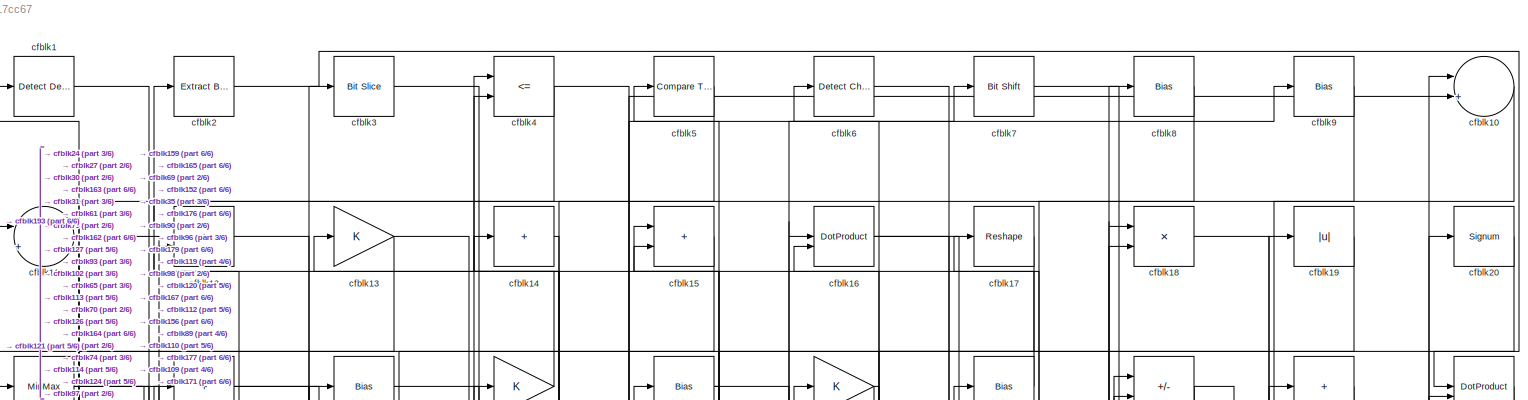
[diagram: root canvas - part 1/6, full width, top band]
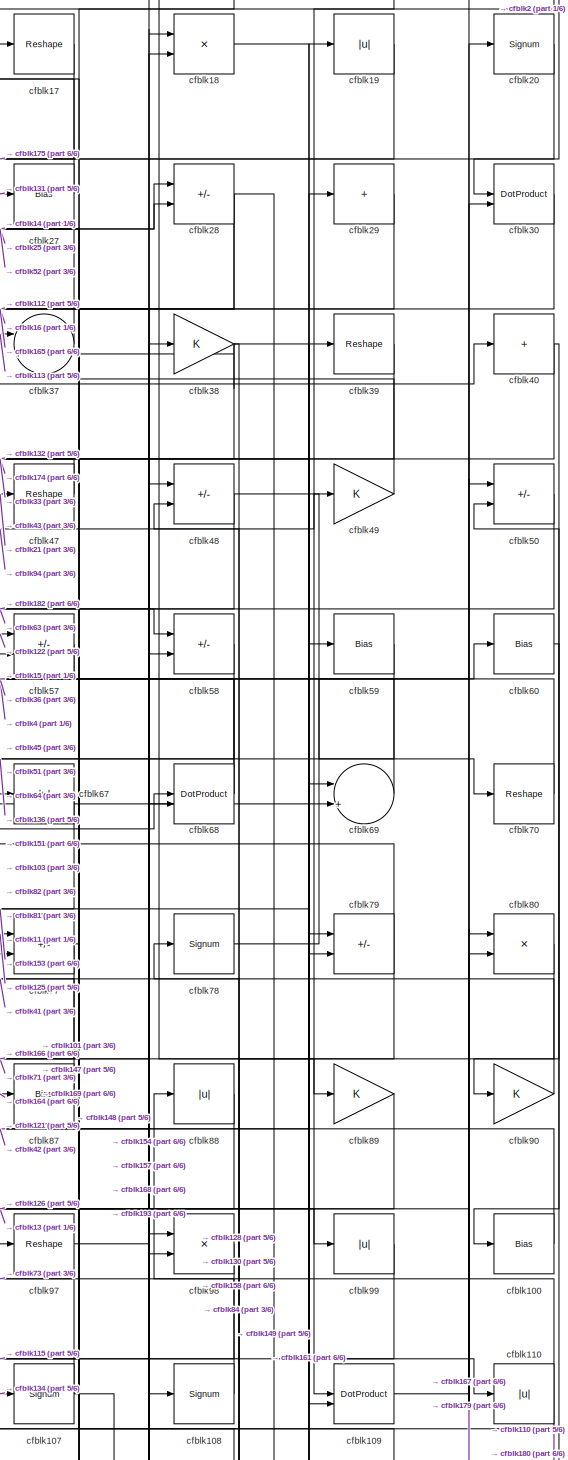
[diagram: root canvas - part 2/6, top right region]
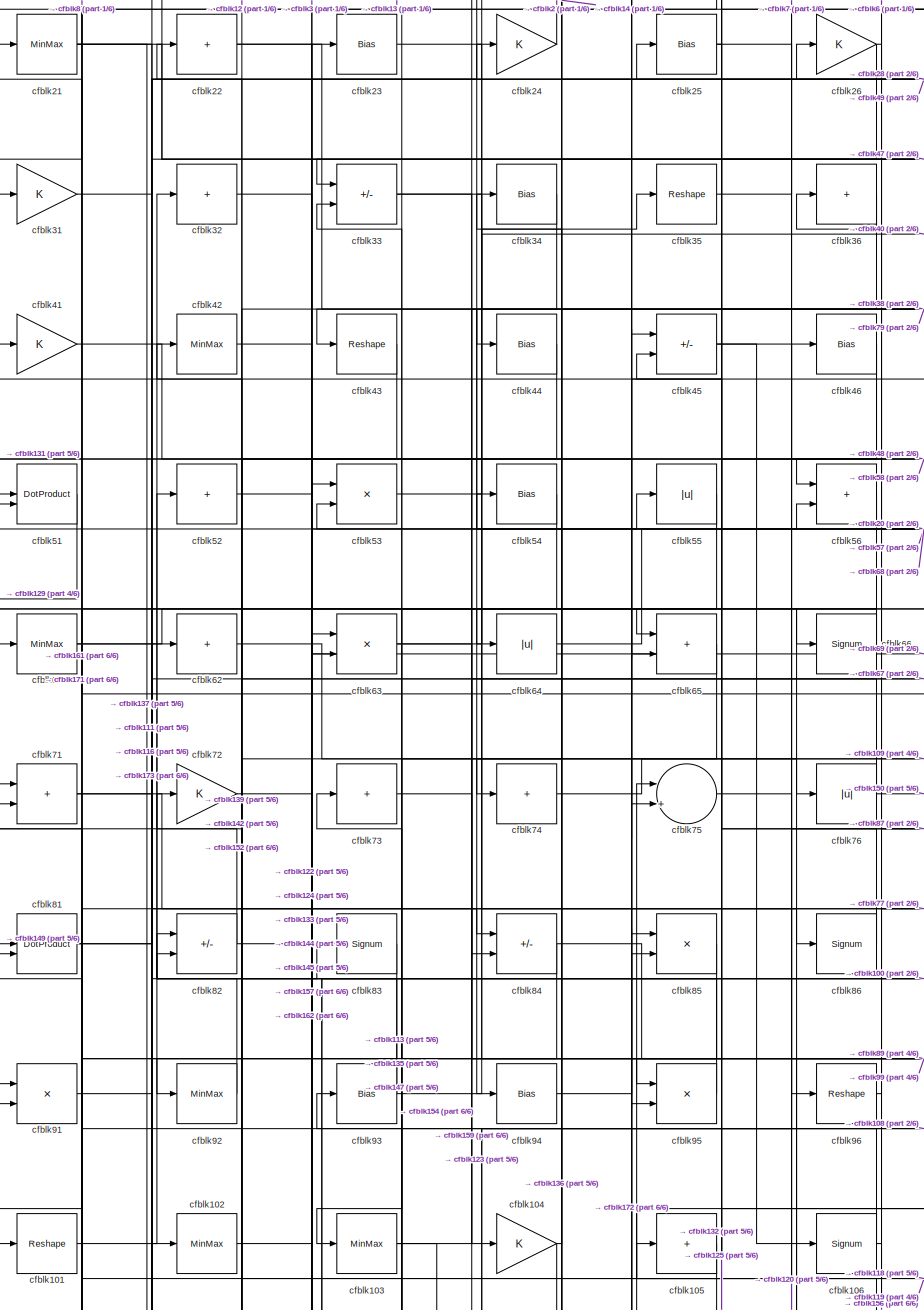
[diagram: root canvas - part 3/6, top left region]
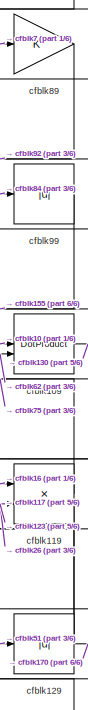
[diagram: root canvas - part 4/6, middle right region]
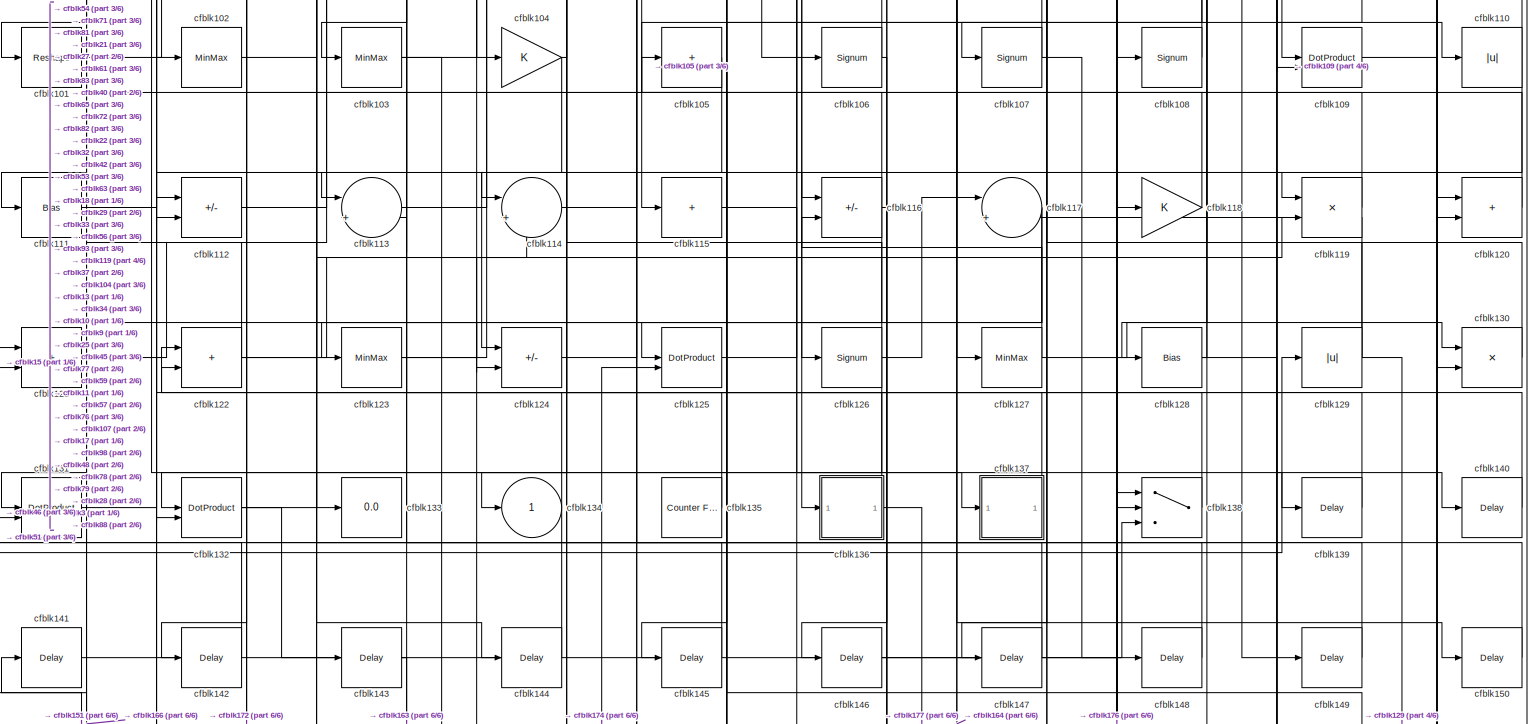
[diagram: root canvas - part 5/6, full width, middle band]
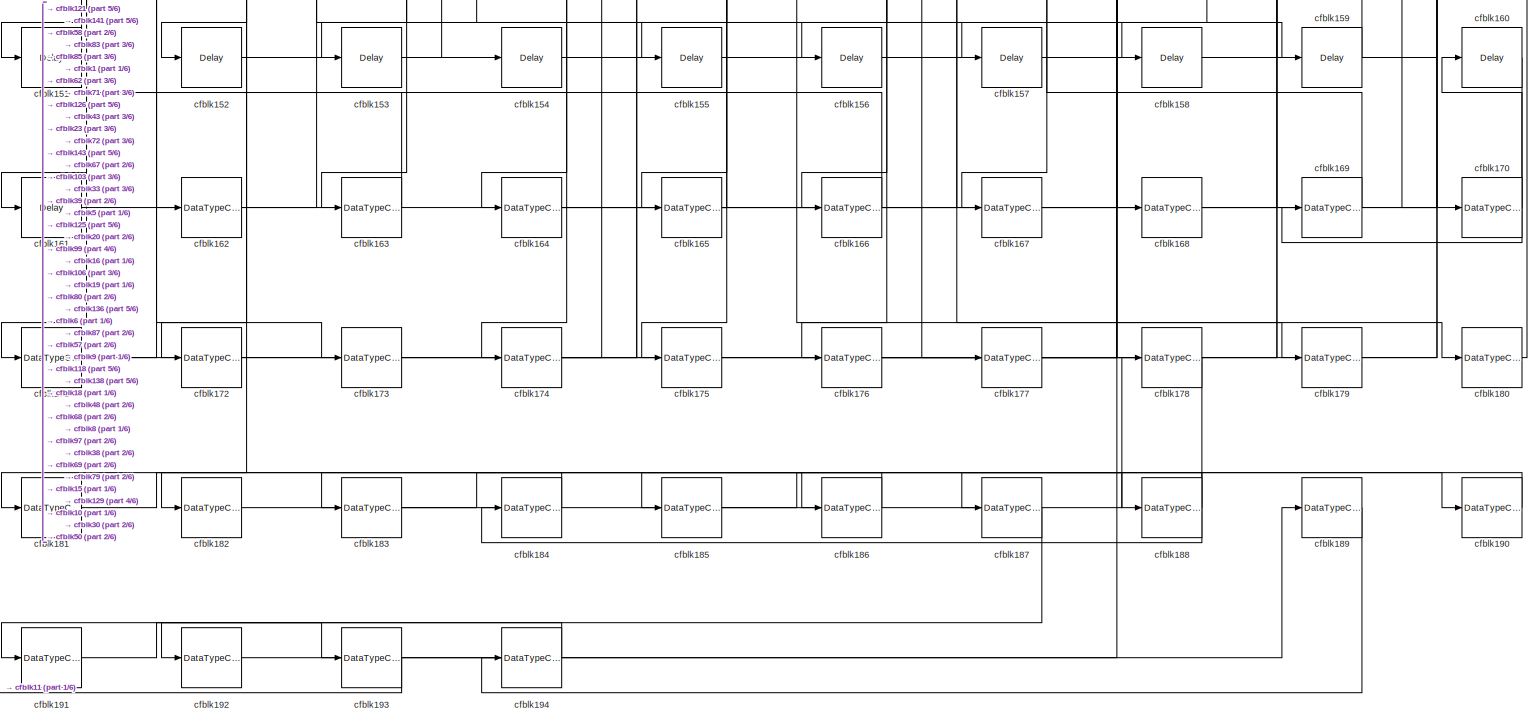
[diagram: root canvas - part 6/6, full width, bottom band]
MODEL slx_c3334517cc67
KIND model
CONFIG AbsTol = auto
CONFIG EnableMultiTasking = off
CONFIG FixedStep = auto
CONFIG MaxStep = auto
CONFIG MinStep = auto
CONFIG RelTol = 1e-3
CONFIG SampleTimeConstraint = Unconstrained
CONFIG SolverName = VariableStepAuto
CONFIG StartTime = 0.0
CONFIG StopTime = 10.0
BLOCK [Reference] cfblk1  REF=simulink/Logic and Bit
Operations/Detect
Decrease
  LibrarySourceBlock = hdlsllib/Logic and Bit\nOperations/Detect\nDecrease
  SourceBlock = simulink/Logic and Bit\nOperations/Detect\nDecrease
  SourceType = Detect Decrease
BLOCK [Sum] cfblk10
  Inputs = |++
BLOCK [Bias] cfblk100
  Bias = 0.0
  SaturateOnIntegerOverflow = off
BLOCK [Reshape] cfblk101
BLOCK [MinMax] cfblk102
BLOCK [MinMax] cfblk103
BLOCK [Gain] cfblk104
BLOCK [Sum] cfblk105
  IconShape = rectangular
  Inputs = +
BLOCK [Signum] cfblk106
BLOCK [Signum] cfblk107
BLOCK [Signum] cfblk108
BLOCK [DotProduct] cfblk109
  OutDataTypeStr = Inherit: Inherit via internal rule
BLOCK [Sum] cfblk11
  Inputs = |++
BLOCK [Abs] cfblk110
  SaturateOnIntegerOverflow = off
BLOCK [Bias] cfblk111
  Bias = 0.0
  SaturateOnIntegerOverflow = off
BLOCK [Sum] cfblk112
  IconShape = rectangular
  Inputs = +-
BLOCK [Sum] cfblk113
  Inputs = |++
BLOCK [Sum] cfblk114
  Inputs = |++
BLOCK [Sum] cfblk115
  IconShape = rectangular
  Inputs = +
BLOCK [Sum] cfblk116
  IconShape = rectangular
  Inputs = +-
BLOCK [Sum] cfblk117
  Inputs = |++
BLOCK [Gain] cfblk118
BLOCK [Product] cfblk119
  Inputs = */
  RndMeth = Zero
  SaturateOnIntegerOverflow = on
BLOCK [Sum] cfblk12
  IconShape = rectangular
BLOCK [Sum] cfblk120
  IconShape = rectangular
BLOCK [Sum] cfblk121
  IconShape = rectangular
BLOCK [Sum] cfblk122
  IconShape = rectangular
BLOCK [MinMax] cfblk123
BLOCK [Sum] cfblk124
  IconShape = rectangular
  Inputs = +-
BLOCK [DotProduct] cfblk125
  OutDataTypeStr = Inherit: Inherit via internal rule
BLOCK [Signum] cfblk126
BLOCK [MinMax] cfblk127
BLOCK [Bias] cfblk128
  Bias = 0.0
  SaturateOnIntegerOverflow = off
BLOCK [Abs] cfblk129
  SaturateOnIntegerOverflow = off
BLOCK [Gain] cfblk13
BLOCK [Product] cfblk130
  Inputs = */
  RndMeth = Zero
  SaturateOnIntegerOverflow = on
BLOCK [DotProduct] cfblk131
  OutDataTypeStr = Inherit: Inherit via internal rule
BLOCK [DotProduct] cfblk132
  OutDataTypeStr = Inherit: Inherit via internal rule
BLOCK [Display] cfblk133
  Decimation = 1
BLOCK [Outport] cfblk134
  VectorParamsAs1DForOutWhenUnconnected = off
BLOCK [Reference] cfblk135  REF=hdlsllib/Sources/Counter
Free-Running
  SourceBlock = hdlsllib/Sources/Counter\nFree-Running
  SourceType = Counter Free-Running
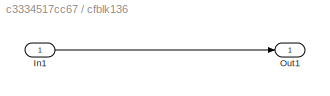
BLOCK [SubSystem] cfblk136
  LibrarySourceBlock = hdlsllib/Ports &\nSubsystems/Subsystem
BLOCK [Inport] cfblk136/In1
BLOCK [Outport] cfblk136/Out1
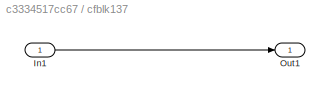
BLOCK [SubSystem] cfblk137
  LibrarySourceBlock = hdlsllib/Ports &\nSubsystems/Subsystem
BLOCK [Inport] cfblk137/In1
BLOCK [Outport] cfblk137/Out1
BLOCK [Switch] cfblk138
  InputSameDT = off
  SaturateOnIntegerOverflow = off
BLOCK [Delay] cfblk139
  InputPortMap = u0
  SampleTime = 1
BLOCK [Sum] cfblk14
  IconShape = rectangular
  Inputs = +
BLOCK [Delay] cfblk140
  InputPortMap = u0
  SampleTime = 1
BLOCK [Delay] cfblk141
  InputPortMap = u0
  SampleTime = 1
BLOCK [Delay] cfblk142
  InputPortMap = u0
  SampleTime = 1
BLOCK [Delay] cfblk143
  InputPortMap = u0
  SampleTime = 1
BLOCK [Delay] cfblk144
  InputPortMap = u0
  SampleTime = 1
BLOCK [Delay] cfblk145
  InputPortMap = u0
  SampleTime = 1
BLOCK [Delay] cfblk146
  InputPortMap = u0
  SampleTime = 1
BLOCK [Delay] cfblk147
  InputPortMap = u0
  SampleTime = 1
BLOCK [Delay] cfblk148
  InputPortMap = u0
  SampleTime = 1
BLOCK [Delay] cfblk149
  InputPortMap = u0
  SampleTime = 1
BLOCK [Sum] cfblk15
  IconShape = rectangular
BLOCK [Delay] cfblk150
  InputPortMap = u0
  SampleTime = 1
BLOCK [Delay] cfblk151
  InputPortMap = u0
  SampleTime = 1
BLOCK [Delay] cfblk152
  InputPortMap = u0
  SampleTime = 1
BLOCK [Delay] cfblk153
  InputPortMap = u0
  SampleTime = 1
BLOCK [Delay] cfblk154
  InputPortMap = u0
  SampleTime = 1
BLOCK [Delay] cfblk155
  InputPortMap = u0
  SampleTime = 1
BLOCK [Delay] cfblk156
  InputPortMap = u0
  SampleTime = 1
BLOCK [Delay] cfblk157
  InputPortMap = u0
  SampleTime = 1
BLOCK [Delay] cfblk158
  InputPortMap = u0
  SampleTime = 1
BLOCK [Delay] cfblk159
  InputPortMap = u0
  SampleTime = 1
BLOCK [DotProduct] cfblk16
  OutDataTypeStr = Inherit: Inherit via internal rule
BLOCK [Delay] cfblk160
  InputPortMap = u0
  SampleTime = 1
BLOCK [Delay] cfblk161
  InputPortMap = u0
  SampleTime = 1
BLOCK [DataTypeConversion] cfblk162
  OutDataTypeStr = uint8
  RndMeth = Floor
  SaturateOnIntegerOverflow = off
BLOCK [DataTypeConversion] cfblk163
  OutDataTypeStr = uint8
  RndMeth = Floor
  SaturateOnIntegerOverflow = off
BLOCK [DataTypeConversion] cfblk164
  RndMeth = Floor
  SaturateOnIntegerOverflow = off
BLOCK [DataTypeConversion] cfblk165
  OutDataTypeStr = uint8
  RndMeth = Floor
  SaturateOnIntegerOverflow = off
BLOCK [DataTypeConversion] cfblk166
  OutDataTypeStr = uint8
  RndMeth = Floor
  SaturateOnIntegerOverflow = off
BLOCK [DataTypeConversion] cfblk167
  OutDataTypeStr = uint8
  RndMeth = Floor
  SaturateOnIntegerOverflow = off
BLOCK [DataTypeConversion] cfblk168
  OutDataTypeStr = uint8
  RndMeth = Floor
  SaturateOnIntegerOverflow = off
BLOCK [DataTypeConversion] cfblk169
  OutDataTypeStr = uint8
  RndMeth = Floor
  SaturateOnIntegerOverflow = off
BLOCK [Reshape] cfblk17
BLOCK [DataTypeConversion] cfblk170
  OutDataTypeStr = uint8
  RndMeth = Floor
  SaturateOnIntegerOverflow = off
BLOCK [DataTypeConversion] cfblk171
  RndMeth = Floor
  SaturateOnIntegerOverflow = off
BLOCK [DataTypeConversion] cfblk172
  OutDataTypeStr = uint8
  RndMeth = Floor
  SaturateOnIntegerOverflow = off
BLOCK [DataTypeConversion] cfblk173
  OutDataTypeStr = uint8
  RndMeth = Floor
  SaturateOnIntegerOverflow = off
BLOCK [DataTypeConversion] cfblk174
  RndMeth = Floor
  SaturateOnIntegerOverflow = off
BLOCK [DataTypeConversion] cfblk175
  OutDataTypeStr = uint8
  RndMeth = Floor
  SaturateOnIntegerOverflow = off
BLOCK [DataTypeConversion] cfblk176
  RndMeth = Floor
  SaturateOnIntegerOverflow = off
BLOCK [DataTypeConversion] cfblk177
  OutDataTypeStr = uint8
  RndMeth = Floor
  SaturateOnIntegerOverflow = off
BLOCK [DataTypeConversion] cfblk178
  RndMeth = Floor
  SaturateOnIntegerOverflow = off
BLOCK [DataTypeConversion] cfblk179
  OutDataTypeStr = uint8
  RndMeth = Floor
  SaturateOnIntegerOverflow = off
BLOCK [Product] cfblk18
  Inputs = */
  RndMeth = Zero
  SaturateOnIntegerOverflow = on
BLOCK [DataTypeConversion] cfblk180
  OutDataTypeStr = uint8
  RndMeth = Floor
  SaturateOnIntegerOverflow = off
BLOCK [DataTypeConversion] cfblk181
  RndMeth = Floor
  SaturateOnIntegerOverflow = off
BLOCK [DataTypeConversion] cfblk182
  OutDataTypeStr = uint8
  RndMeth = Floor
  SaturateOnIntegerOverflow = off
BLOCK [DataTypeConversion] cfblk183
  RndMeth = Floor
  SaturateOnIntegerOverflow = off
BLOCK [DataTypeConversion] cfblk184
  OutDataTypeStr = uint8
  RndMeth = Floor
  SaturateOnIntegerOverflow = off
BLOCK [DataTypeConversion] cfblk185
  RndMeth = Floor
  SaturateOnIntegerOverflow = off
BLOCK [DataTypeConversion] cfblk186
  OutDataTypeStr = uint8
  RndMeth = Floor
  SaturateOnIntegerOverflow = off
BLOCK [DataTypeConversion] cfblk187
  RndMeth = Floor
  SaturateOnIntegerOverflow = off
BLOCK [DataTypeConversion] cfblk188
  OutDataTypeStr = uint8
  RndMeth = Floor
  SaturateOnIntegerOverflow = off
BLOCK [DataTypeConversion] cfblk189
  RndMeth = Floor
  SaturateOnIntegerOverflow = off
BLOCK [Abs] cfblk19
  SaturateOnIntegerOverflow = off
BLOCK [DataTypeConversion] cfblk190
  OutDataTypeStr = uint8
  RndMeth = Floor
  SaturateOnIntegerOverflow = off
BLOCK [DataTypeConversion] cfblk191
  RndMeth = Floor
  SaturateOnIntegerOverflow = off
BLOCK [DataTypeConversion] cfblk192
  OutDataTypeStr = uint8
  RndMeth = Floor
  SaturateOnIntegerOverflow = off
BLOCK [DataTypeConversion] cfblk193
  RndMeth = Floor
  SaturateOnIntegerOverflow = off
BLOCK [DataTypeConversion] cfblk194
  OutDataTypeStr = uint8
  RndMeth = Floor
  SaturateOnIntegerOverflow = off
BLOCK [Reference] cfblk2  REF=simulink/Logic and Bit
Operations/Extract Bits
  LibrarySourceBlock = hdlsllib/Logic and Bit\nOperations/Extract Bits
  SourceBlock = simulink/Logic and Bit\nOperations/Extract Bits
  SourceType = Extract Bits
BLOCK [Signum] cfblk20
BLOCK [MinMax] cfblk21
BLOCK [Sum] cfblk22
  IconShape = rectangular
  Inputs = +
BLOCK [Bias] cfblk23
  Bias = 0.0
  SaturateOnIntegerOverflow = off
BLOCK [Gain] cfblk24
BLOCK [Bias] cfblk25
  Bias = 0.0
  SaturateOnIntegerOverflow = off
BLOCK [Gain] cfblk26
BLOCK [Bias] cfblk27
  Bias = 0.0
  SaturateOnIntegerOverflow = off
BLOCK [Sum] cfblk28
  IconShape = rectangular
  Inputs = +-
BLOCK [Sum] cfblk29
  IconShape = rectangular
  Inputs = +
BLOCK [Reference] cfblk3  REF=hdlsllib/Logic and Bit
Operations/Bit Slice
  SourceBlock = hdlsllib/Logic and Bit\nOperations/Bit Slice
  SourceType = Bit Slice
BLOCK [DotProduct] cfblk30
  OutDataTypeStr = Inherit: Inherit via internal rule
BLOCK [Gain] cfblk31
BLOCK [Sum] cfblk32
  IconShape = rectangular
  Inputs = +
BLOCK [Sum] cfblk33
  IconShape = rectangular
  Inputs = +-
BLOCK [Bias] cfblk34
  Bias = 0.0
  SaturateOnIntegerOverflow = off
BLOCK [Reshape] cfblk35
BLOCK [Sum] cfblk36
  IconShape = rectangular
  Inputs = +
BLOCK [Sum] cfblk37
  Inputs = |++
BLOCK [Gain] cfblk38
BLOCK [Reshape] cfblk39
BLOCK [RelationalOperator] cfblk4
  InputSameDT = off
  Operator = <=
  OutDataTypeStr = boolean
BLOCK [Sum] cfblk40
  IconShape = rectangular
  Inputs = +
BLOCK [Gain] cfblk41
BLOCK [MinMax] cfblk42
BLOCK [Reshape] cfblk43
BLOCK [Bias] cfblk44
  Bias = 0.0
  SaturateOnIntegerOverflow = off
BLOCK [Sum] cfblk45
  IconShape = rectangular
  Inputs = +-
BLOCK [Bias] cfblk46
  Bias = 0.0
  SaturateOnIntegerOverflow = off
BLOCK [Reshape] cfblk47
BLOCK [Sum] cfblk48
  IconShape = rectangular
  Inputs = +-
BLOCK [Gain] cfblk49
BLOCK [Reference] cfblk5  REF=hdlsllib/Logic and Bit
Operations/Compare
To Constant
  SourceBlock = hdlsllib/Logic and Bit\nOperations/Compare\nTo Constant
  SourceType = Compare To Constant
BLOCK [Sum] cfblk50
  IconShape = rectangular
  Inputs = +-
BLOCK [DotProduct] cfblk51
  OutDataTypeStr = Inherit: Inherit via internal rule
BLOCK [Sum] cfblk52
  IconShape = rectangular
  Inputs = +
BLOCK [Product] cfblk53
  Inputs = */
  RndMeth = Zero
  SaturateOnIntegerOverflow = on
BLOCK [Bias] cfblk54
  Bias = 0.0
  SaturateOnIntegerOverflow = off
BLOCK [Abs] cfblk55
  SaturateOnIntegerOverflow = off
BLOCK [Sum] cfblk56
  IconShape = rectangular
BLOCK [Sum] cfblk57
  IconShape = rectangular
  Inputs = +-
BLOCK [Sum] cfblk58
  IconShape = rectangular
  Inputs = +-
BLOCK [Bias] cfblk59
  Bias = 0.0
  SaturateOnIntegerOverflow = off
BLOCK [Reference] cfblk6  REF=simulink/Logic and Bit
Operations/Detect
Change
  LibrarySourceBlock = hdlsllib/Logic and Bit\nOperations/Detect\nChange
  SourceBlock = simulink/Logic and Bit\nOperations/Detect\nChange
  SourceType = Detect Change
BLOCK [Bias] cfblk60
  Bias = 0.0
  SaturateOnIntegerOverflow = off
BLOCK [MinMax] cfblk61
BLOCK [Sum] cfblk62
  IconShape = rectangular
  Inputs = +
BLOCK [Product] cfblk63
  Inputs = */
  RndMeth = Zero
  SaturateOnIntegerOverflow = on
BLOCK [Abs] cfblk64
  SaturateOnIntegerOverflow = off
BLOCK [Sum] cfblk65
  IconShape = rectangular
BLOCK [Signum] cfblk66
BLOCK [Abs] cfblk67
  SaturateOnIntegerOverflow = off
BLOCK [DotProduct] cfblk68
  OutDataTypeStr = Inherit: Inherit via internal rule
BLOCK [Sum] cfblk69
  Inputs = |++
BLOCK [Reference] cfblk7  REF=hdlsllib/Logic and Bit
Operations/Bit Shift
  SourceBlock = hdlsllib/Logic and Bit\nOperations/Bit Shift
  SourceType = Bit Shift
BLOCK [Reshape] cfblk70
BLOCK [Sum] cfblk71
  IconShape = rectangular
BLOCK [Gain] cfblk72
BLOCK [Sum] cfblk73
  IconShape = rectangular
  Inputs = +
BLOCK [Sum] cfblk74
  IconShape = rectangular
  Inputs = +
BLOCK [Sum] cfblk75
  Inputs = |++
BLOCK [Abs] cfblk76
  SaturateOnIntegerOverflow = off
BLOCK [Sum] cfblk77
  IconShape = rectangular
  Inputs = +-
BLOCK [Signum] cfblk78
BLOCK [Sum] cfblk79
  IconShape = rectangular
  Inputs = +-
BLOCK [Bias] cfblk8
  Bias = 0.0
  SaturateOnIntegerOverflow = off
BLOCK [Product] cfblk80
  Inputs = */
  RndMeth = Zero
  SaturateOnIntegerOverflow = on
BLOCK [DotProduct] cfblk81
  OutDataTypeStr = Inherit: Inherit via internal rule
BLOCK [Sum] cfblk82
  IconShape = rectangular
  Inputs = +-
BLOCK [Signum] cfblk83
BLOCK [Sum] cfblk84
  IconShape = rectangular
  Inputs = +-
BLOCK [Product] cfblk85
  Inputs = */
  RndMeth = Zero
  SaturateOnIntegerOverflow = on
BLOCK [Signum] cfblk86
BLOCK [Bias] cfblk87
  Bias = 0.0
  SaturateOnIntegerOverflow = off
BLOCK [Abs] cfblk88
  SaturateOnIntegerOverflow = off
BLOCK [Gain] cfblk89
BLOCK [Bias] cfblk9
  Bias = 0.0
  SaturateOnIntegerOverflow = off
BLOCK [Gain] cfblk90
BLOCK [Product] cfblk91
  Inputs = */
  RndMeth = Zero
  SaturateOnIntegerOverflow = on
BLOCK [MinMax] cfblk92
BLOCK [Bias] cfblk93
  Bias = 0.0
  SaturateOnIntegerOverflow = off
BLOCK [Bias] cfblk94
  Bias = 0.0
  SaturateOnIntegerOverflow = off
BLOCK [Product] cfblk95
  Inputs = */
  RndMeth = Zero
  SaturateOnIntegerOverflow = on
BLOCK [Reshape] cfblk96
BLOCK [Reshape] cfblk97
BLOCK [Product] cfblk98
  Inputs = */
  RndMeth = Zero
  SaturateOnIntegerOverflow = on
BLOCK [Abs] cfblk99
  SaturateOnIntegerOverflow = off
LINE cfblk100:1 -> cfblk42:1
LINE cfblk101:1 -> cfblk32:1
LINE cfblk102:1 -> cfblk3:1
NET cfblk103:1 -> cfblk154:1, cfblk67:1
NET cfblk104:1 -> cfblk124:1, cfblk54:1
LINE cfblk105:1 -> cfblk132:2
NET cfblk106:1 -> cfblk156:1, cfblk21:1
NET cfblk107:1 -> cfblk148:1, cfblk77:2
LINE cfblk108:1 -> cfblk73:1
LINE cfblk109:1 -> cfblk130:2
LINE cfblk10:1 -> cfblk109:1
NET cfblk110:1 -> cfblk114:1, cfblk88:1
LINE cfblk111:1 -> cfblk83:1
LINE cfblk112:1 -> cfblk18:1
LINE cfblk113:1 -> cfblk37:1
LINE cfblk114:1 -> cfblk10:2
LINE cfblk115:1 -> cfblk139:1
NET cfblk116:1 -> cfblk145:1, cfblk146:1, cfblk81:2
NET cfblk117:1 -> cfblk123:1, cfblk131:1
LINE cfblk118:1 -> cfblk72:1
LINE cfblk119:1 -> cfblk75:1
LINE cfblk11:1 -> cfblk127:1
LINE cfblk120:1 -> cfblk17:1
LINE cfblk121:1 -> cfblk29:1
NET cfblk122:1 -> cfblk56:2, cfblk57:1, cfblk71:1
NET cfblk123:1 -> cfblk119:2, cfblk46:1
LINE cfblk124:1 -> cfblk9:1
LINE cfblk125:1 -> cfblk77:1
NET cfblk126:1 -> cfblk117:1, cfblk13:1, cfblk172:1
NET cfblk127:1 -> cfblk116:2, cfblk130:1
NET cfblk128:1 -> cfblk140:1, cfblk48:2
NET cfblk129:1 -> cfblk117:2, cfblk170:1, cfblk26:1
LINE cfblk12:1 -> cfblk65:2
LINE cfblk130:1 -> cfblk78:1
LINE cfblk131:1 -> cfblk27:1
NET cfblk132:1 -> cfblk114:2, cfblk143:1
LINE cfblk135:1 -> cfblk93:1
LINE cfblk136/In1:1 -> cfblk136/Out1:1
NET cfblk136:1 -> cfblk177:1, cfblk34:1
LINE cfblk137/In1:1 -> cfblk137/Out1:1
LINE cfblk137:1 -> cfblk105:1
LINE cfblk138:1 -> cfblk122:1
LINE cfblk139:1 -> cfblk82:2
NET cfblk13:1 -> cfblk31:1, cfblk98:2
LINE cfblk140:1 -> cfblk112:1
LINE cfblk141:1 -> cfblk138:2
LINE cfblk142:1 -> cfblk51:1
LINE cfblk143:1 -> cfblk163:1
LINE cfblk144:1 -> cfblk63:1
LINE cfblk145:1 -> cfblk53:1
LINE cfblk146:1 -> cfblk138:3
LINE cfblk147:1 -> cfblk33:2
LINE cfblk148:1 -> cfblk122:2
LINE cfblk149:1 -> cfblk81:1
LINE cfblk14:1 -> cfblk74:1
LINE cfblk150:1 -> cfblk45:1
LINE cfblk151:1 -> cfblk121:1
LINE cfblk152:1 -> cfblk16:1
LINE cfblk153:1 -> cfblk30:2
LINE cfblk154:1 -> cfblk68:2
LINE cfblk155:1 -> cfblk180:1
LINE cfblk156:1 -> cfblk18:2
LINE cfblk157:1 -> cfblk48:1
LINE cfblk158:1 -> cfblk79:2
LINE cfblk159:1 -> cfblk15:2
LINE cfblk15:1 -> cfblk121:2
LINE cfblk160:1 -> cfblk169:1
LINE cfblk161:1 -> cfblk69:1
LINE cfblk162:1 -> cfblk23:1
LINE cfblk163:1 -> cfblk1:1
NET cfblk164:1 -> cfblk138:1, cfblk87:1
LINE cfblk165:1 -> cfblk5:1
LINE cfblk166:1 -> cfblk141:1
LINE cfblk167:1 -> cfblk80:1
LINE cfblk168:1 -> cfblk80:2
LINE cfblk169:1 -> cfblk57:2
NET cfblk16:1 -> cfblk119:1, cfblk98:1
LINE cfblk170:1 -> cfblk160:1
NET cfblk171:1 -> cfblk10:1, cfblk62:1
LINE cfblk172:1 -> cfblk85:1
LINE cfblk173:1 -> cfblk85:2
NET cfblk174:1 -> cfblk125:2, cfblk58:2
LINE cfblk175:1 -> cfblk39:1
NET cfblk176:1 -> cfblk118:1, cfblk8:1
LINE cfblk177:1 -> cfblk19:1
LINE cfblk178:1 -> cfblk184:1
LINE cfblk179:1 -> cfblk50:1
LINE cfblk17:1 -> cfblk113:1
LINE cfblk180:1 -> cfblk50:2
LINE cfblk181:1 -> cfblk186:1
LINE cfblk182:1 -> cfblk178:1
LINE cfblk183:1 -> cfblk188:1
LINE cfblk184:1 -> cfblk181:1
LINE cfblk185:1 -> cfblk190:1
LINE cfblk186:1 -> cfblk183:1
LINE cfblk187:1 -> cfblk192:1
LINE cfblk188:1 -> cfblk185:1
LINE cfblk189:1 -> cfblk194:1
LINE cfblk18:1 -> cfblk110:1
LINE cfblk190:1 -> cfblk187:1
LINE cfblk191:1 -> cfblk193:1
LINE cfblk192:1 -> cfblk189:1
NET cfblk193:1 -> cfblk11:1, cfblk38:1
LINE cfblk194:1 -> cfblk191:1
LINE cfblk19:1 -> cfblk176:1
LINE cfblk1:1 -> cfblk162:1
LINE cfblk20:1 -> cfblk175:1
NET cfblk21:1 -> cfblk137:1, cfblk47:1, cfblk84:1
NET cfblk22:1 -> cfblk124:2, cfblk94:1
LINE cfblk23:1 -> cfblk86:1
LINE cfblk24:1 -> cfblk2:1
NET cfblk25:1 -> cfblk125:1, cfblk58:1
NET cfblk26:1 -> cfblk33:1, cfblk56:1
LINE cfblk27:1 -> cfblk4:2
NET cfblk28:1 -> cfblk107:1, cfblk134:1, cfblk149:1
LINE cfblk29:1 -> cfblk112:2
LINE cfblk2:1 -> cfblk30:1
LINE cfblk30:1 -> cfblk165:1
LINE cfblk31:1 -> cfblk24:1
LINE cfblk32:1 -> cfblk133:1
NET cfblk33:1 -> cfblk159:1, cfblk79:1
LINE cfblk34:1 -> cfblk44:1
LINE cfblk35:1 -> cfblk7:1
LINE cfblk36:1 -> cfblk95:1
LINE cfblk37:1 -> cfblk14:1
NET cfblk38:1 -> cfblk158:1, cfblk37:2, cfblk59:1, cfblk84:2
LINE cfblk39:1 -> cfblk174:1
LINE cfblk3:1 -> cfblk120:1
NET cfblk40:1 -> cfblk132:1, cfblk90:1
LINE cfblk41:1 -> cfblk75:2
LINE cfblk42:1 -> cfblk144:1
LINE cfblk43:1 -> cfblk152:1
LINE cfblk44:1 -> cfblk91:2
NET cfblk45:1 -> cfblk106:1, cfblk120:2
NET cfblk46:1 -> cfblk131:2, cfblk65:1
LINE cfblk47:1 -> cfblk43:1
NET cfblk48:1 -> cfblk63:2, cfblk70:1
LINE cfblk49:1 -> cfblk25:1
NET cfblk4:1 -> cfblk12:1, cfblk97:1
LINE cfblk50:1 -> cfblk182:1
LINE cfblk51:1 -> cfblk129:1
LINE cfblk52:1 -> cfblk28:1
LINE cfblk53:1 -> cfblk35:1
LINE cfblk54:1 -> cfblk111:1
LINE cfblk55:1 -> cfblk91:1
LINE cfblk56:1 -> cfblk113:2
LINE cfblk57:1 -> cfblk51:2
LINE cfblk58:1 -> cfblk151:1
LINE cfblk59:1 -> cfblk136:1
LINE cfblk5:1 -> cfblk164:1
LINE cfblk60:1 -> cfblk100:1
NET cfblk61:1 -> cfblk116:1, cfblk66:1
LINE cfblk62:1 -> cfblk109:2
NET cfblk63:1 -> cfblk40:1, cfblk95:2
LINE cfblk64:1 -> cfblk20:1
LINE cfblk65:1 -> cfblk142:1
LINE cfblk66:1 -> cfblk64:1
LINE cfblk67:1 -> cfblk153:1
NET cfblk68:1 -> cfblk36:1, cfblk45:2
LINE cfblk69:1 -> cfblk15:1
LINE cfblk6:1 -> cfblk179:1
LINE cfblk70:1 -> cfblk4:1
NET cfblk71:1 -> cfblk108:1, cfblk173:1
LINE cfblk72:1 -> cfblk157:1
LINE cfblk73:1 -> cfblk104:1
LINE cfblk74:1 -> cfblk76:1
LINE cfblk75:1 -> cfblk96:1
NET cfblk76:1 -> cfblk150:1, cfblk22:1
NET cfblk77:1 -> cfblk101:1, cfblk147:1
LINE cfblk78:1 -> cfblk60:1
NET cfblk79:1 -> cfblk11:2, cfblk128:1
LINE cfblk7:1 -> cfblk89:1
LINE cfblk80:1 -> cfblk166:1
NET cfblk81:1 -> cfblk28:2, cfblk68:1
NET cfblk82:1 -> cfblk69:2, cfblk71:2
LINE cfblk83:1 -> cfblk161:1
NET cfblk84:1 -> cfblk103:1, cfblk99:1
LINE cfblk85:1 -> cfblk171:1
LINE cfblk86:1 -> cfblk53:2
LINE cfblk87:1 -> cfblk41:1
LINE cfblk88:1 -> cfblk126:1
LINE cfblk89:1 -> cfblk92:1
LINE cfblk8:1 -> cfblk61:1
LINE cfblk90:1 -> cfblk16:2
LINE cfblk91:1 -> cfblk102:1
LINE cfblk92:1 -> cfblk82:1
NET cfblk93:1 -> cfblk12:2, cfblk55:1
LINE cfblk94:1 -> cfblk49:1
LINE cfblk95:1 -> cfblk52:1
LINE cfblk96:1 -> cfblk6:1
LINE cfblk97:1 -> cfblk168:1
LINE cfblk98:1 -> cfblk115:1
LINE cfblk99:1 -> cfblk155:1
LINE cfblk9:1 -> cfblk167:1
note: NET lines group one-source signal fan-out (src -> all destinations, sorted); 1:1 wires keep LINE
